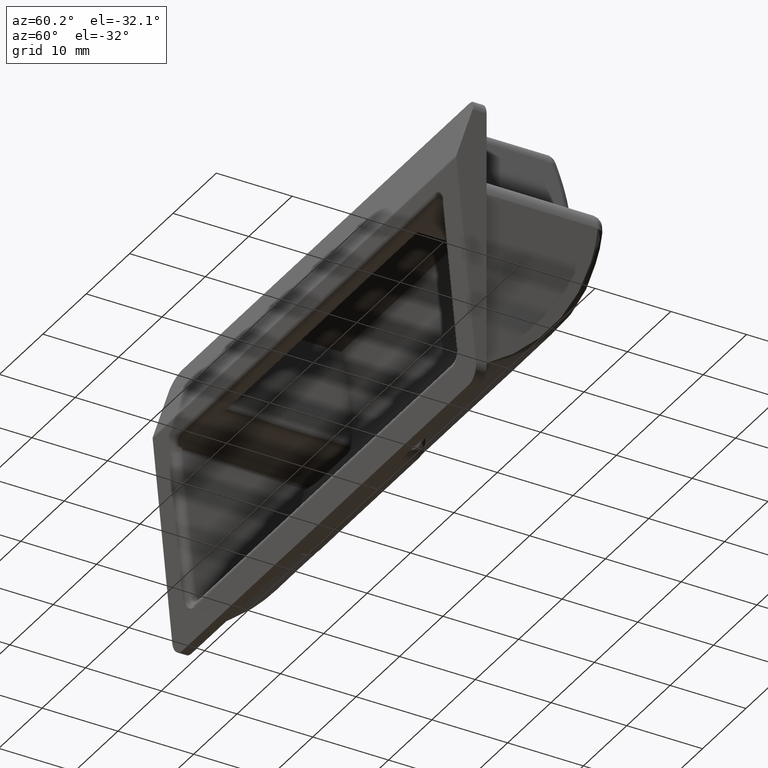
[diagram: clean part render]
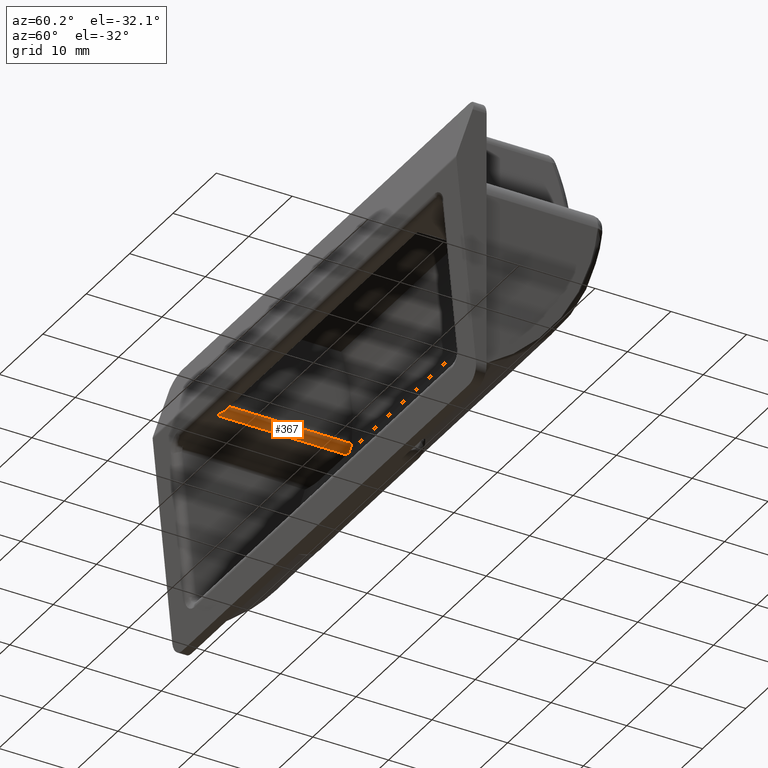
[diagram: same view with one face highlighted and labeled with its STEP entity id]
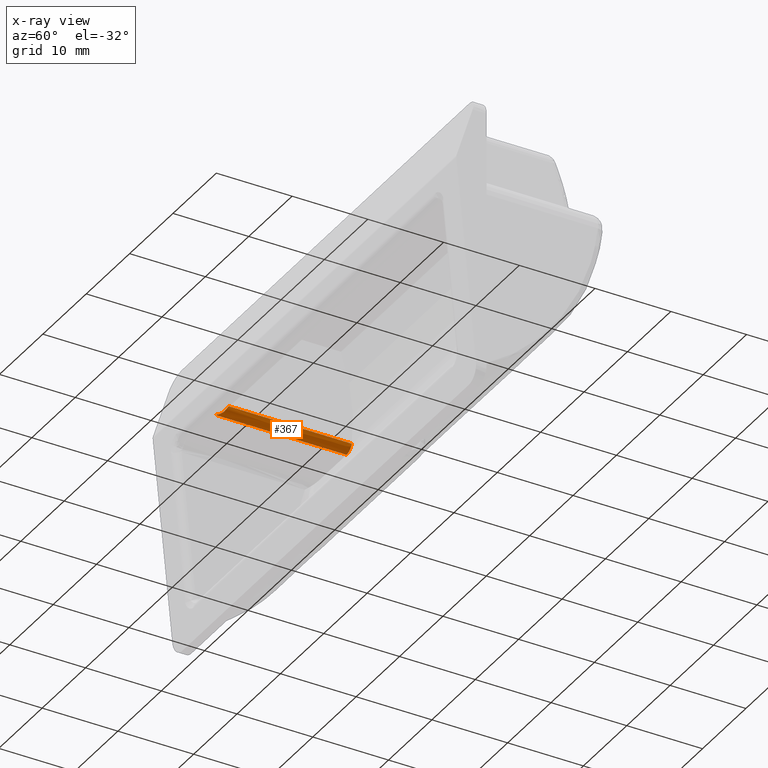
[diagram: x-ray of the same camera — body ghosted, the highlighted face saturated]
A machine part, auxiliary view. The second image highlights one B-rep face of the part: STEP entity #367.
The next image is the same camera in x-ray: the body ghosted, the highlighted face saturated — about 0% of this face is hidden behind the body in this view.
In plain terms, the highlighted face is a freeform B-spline surface patch.
Its self-contained STEP definition (entity closure, byte-faithful):
#12=CARTESIAN_POINT('',(-22.0,-1.428899283970614,7.250000000000000));
#13=VERTEX_POINT('',#12);
#19=CARTESIAN_POINT('',(-22.0,14.843725627225140,7.250000000000000));
#20=VERTEX_POINT('',#19);
#21=CARTESIAN_POINT('',(-22.0,-1.428899283970614,7.250000000000000));
#22=CARTESIAN_POINT('',(-22.0,14.843725627225140,7.250000000000000));
#23=QUASI_UNIFORM_CURVE('',1,(#21,#22),.UNSPECIFIED.,.F.,.U.);
#24=EDGE_CURVE('',#13,#20,#23,.T.);
#134=CARTESIAN_POINT('',(-22.116360034193800,-1.676941947625150,6.781832924235230));
#135=VERTEX_POINT('',#134);
#141=CARTESIAN_POINT('',(-22.116360034193800,-1.676941947625150,6.781832924235230));
#142=CARTESIAN_POINT('',(-22.0,-1.560581913431228,7.001456178323190));
#143=CARTESIAN_POINT('',(-22.0,-1.428899283970614,7.250000000000000));
#151=(BOUNDED_CURVE()B_SPLINE_CURVE(2,(#141,#142,#143),.UNSPECIFIED.,.F.,.U.)CURVE()GEOMETRIC_REPRESENTATION_ITEM()QUASI_UNIFORM_CURVE()RATIONAL_B_SPLINE_CURVE((1.0,0.970474102129009,1.0))REPRESENTATION_ITEM(''));
#152=EDGE_CURVE('',#135,#13,#151,.T.);
#204=CARTESIAN_POINT('',(-22.881086337772199,14.717773016486341,6.257095401896260));
#205=VERTEX_POINT('',#204);
#206=CARTESIAN_POINT('',(-22.0,14.843725627225140,7.250000000000000));
#207=CARTESIAN_POINT('',(-22.0,14.837141404805040,7.189069344417754));
#208=CARTESIAN_POINT('',(-22.005521803794998,14.830451007829151,7.129097027640098));
#209=CARTESIAN_POINT('',(-22.021728085031871,14.820276971388470,7.040512140571964));
#210=CARTESIAN_POINT('',(-22.028459274587540,14.816862682105571,7.011214217915700));
#211=CARTESIAN_POINT('',(-22.044619598866451,14.809993450770110,6.953085332139873));
#212=CARTESIAN_POINT('',(-22.054102976795829,14.806521832449700,6.924117829341912));
#213=CARTESIAN_POINT('',(-22.086344433419729,14.796185872546500,6.839007328174429));
#214=CARTESIAN_POINT('',(-22.112678247950221,14.789438857673540,6.784950629970435));
#215=CARTESIAN_POINT('',(-22.159233295320352,14.779591202713020,6.707769375303722));
#216=CARTESIAN_POINT('',(-22.175934695535251,14.776354519222510,6.682696965486742));
#217=CARTESIAN_POINT('',(-22.211758286697581,14.769987844064049,6.633890139341533));
#218=CARTESIAN_POINT('',(-22.230968325622818,14.766846478347061,6.610072132283865));
#219=CARTESIAN_POINT('',(-22.291176930408309,14.757785577592561,6.542017355922500));
#220=CARTESIAN_POINT('',(-22.334977388630040,14.752174491726130,6.500747627630709));
#221=CARTESIAN_POINT('',(-22.406096336824419,14.744475473594980,6.444899393460526));
#222=CARTESIAN_POINT('',(-22.430711183352319,14.742029366563010,6.427298854708785));
#223=CARTESIAN_POINT('',(-22.481814367213321,14.737398532891969,6.394190102185622));
#224=CARTESIAN_POINT('',(-22.508236974189181,14.735222397778911,6.378744082523862));
#225=CARTESIAN_POINT('',(-22.588699452529109,14.729237974537780,6.336488725402196));
#226=CARTESIAN_POINT('',(-22.644422950894580,14.725923197668850,6.313393744776925));
#227=CARTESIAN_POINT('',(-22.760029628982579,14.720720727790480,6.277333286162586));
#228=CARTESIAN_POINT('',(-22.820233115909890,14.718835117492590,6.264383392589251));
#229=CARTESIAN_POINT('',(-22.881086337772199,14.717773016486341,6.257095401896260));
#230=B_SPLINE_CURVE_WITH_KNOTS('',3,(#206,#207,#208,#209,#210,#211,#212,#213,#214,#215,#216,#217,#218,#219,#220,#221,#222,#223,#224,#225,#226,#227,#228,#229),.UNSPECIFIED.,.F.,.U.,(4,2,2,2,2,2,2,2,2,2,2,4),(0.0,0.125000000000001,0.187500000000000,0.250000000000000,0.374999999999999,0.437499999999998,0.499999999999998,0.625000000000000,0.687500000000002,0.750000000000004,0.875000000000002,1.0),.UNSPECIFIED.);
#231=EDGE_CURVE('',#20,#205,#230,.T.);
#319=CARTESIAN_POINT('',(-23.026176948307871,-2.995689601947686,6.250342675024443));
#320=CARTESIAN_POINT('',(-23.026176948307871,15.289711007954461,6.250342675024443));
#321=CARTESIAN_POINT('',(-21.935242411405884,-2.995689601947686,6.221775548804009));
#322=CARTESIAN_POINT('',(-21.935242411405884,15.289711007954459,6.221775548804009));
#323=CARTESIAN_POINT('',(-22.001865201578131,-2.995689601947686,7.311048539534859));
#324=CARTESIAN_POINT('',(-22.001865201578131,15.289711007954461,7.311048539534859));
#332=(BOUNDED_SURFACE()B_SPLINE_SURFACE(1,2,((#319,#321,#323),(#320,#322,#324)),.UNSPECIFIED.,.F.,.F.,.U.)B_SPLINE_SURFACE_WITH_KNOTS((2,2),(3,3),(0.0,18.285400609902151),(0.0,1.0),.UNSPECIFIED.)GEOMETRIC_REPRESENTATION_ITEM()RATIONAL_B_SPLINE_SURFACE(((1.0,0.675590207615660,1.0),(1.0,0.675590207615660,1.0)))REPRESENTATION_ITEM('')SURFACE());
#333=CARTESIAN_POINT('',(-23.0,-2.560581913431275,6.250000000000000));
#334=VERTEX_POINT('',#333);
#335=CARTESIAN_POINT('',(-23.0,-2.560581913431275,6.250000000000000));
#336=CARTESIAN_POINT('',(-22.398133917867685,-1.958715831298963,6.250000000000000));
#337=CARTESIAN_POINT('',(-22.116360034193839,-1.676941947625114,6.781832924235284));
#345=(BOUNDED_CURVE()B_SPLINE_CURVE(2,(#335,#336,#337),.UNSPECIFIED.,.F.,.U.)CURVE()GEOMETRIC_REPRESENTATION_ITEM()QUASI_UNIFORM_CURVE()RATIONAL_B_SPLINE_CURVE((1.0,0.856786751696335,1.0))REPRESENTATION_ITEM(''));
#346=EDGE_CURVE('',#334,#135,#345,.T.);
#347=ORIENTED_EDGE('',*,*,#346,.F.);
#348=CARTESIAN_POINT('',(-23.0,14.716712975985759,6.250000000000000));
#349=VERTEX_POINT('',#348);
#350=CARTESIAN_POINT('',(-23.0,14.716712975985759,6.250000000000000));
#351=CARTESIAN_POINT('',(-23.0,-2.560581913431275,6.250000000000000));
#352=QUASI_UNIFORM_CURVE('',1,(#350,#351),.UNSPECIFIED.,.F.,.U.);
#353=EDGE_CURVE('',#349,#334,#352,.T.);
#354=ORIENTED_EDGE('',*,*,#353,.F.);
#355=CARTESIAN_POINT('',(-22.881086337772199,14.717773016486341,6.257095401896260));
#356=CARTESIAN_POINT('',(-22.920580127544088,14.717083712081850,6.252365490094059));
#357=CARTESIAN_POINT('',(-22.960217838689349,14.716712975985759,6.250000000000000));
#358=CARTESIAN_POINT('',(-23.0,14.716712975985759,6.250000000000000));
#359=QUASI_UNIFORM_CURVE('',3,(#355,#356,#357,#358),.UNSPECIFIED.,.F.,.U.);
#360=EDGE_CURVE('',#205,#349,#359,.T.);
#361=ORIENTED_EDGE('',*,*,#360,.F.);
#362=ORIENTED_EDGE('',*,*,#231,.F.);
#363=ORIENTED_EDGE('',*,*,#24,.F.);
#364=ORIENTED_EDGE('',*,*,#152,.F.);
#365=EDGE_LOOP('',(#347,#354,#361,#362,#363,#364));
#366=FACE_OUTER_BOUND('',#365,.T.);
#367=ADVANCED_FACE('',(#366),#332,.T.);